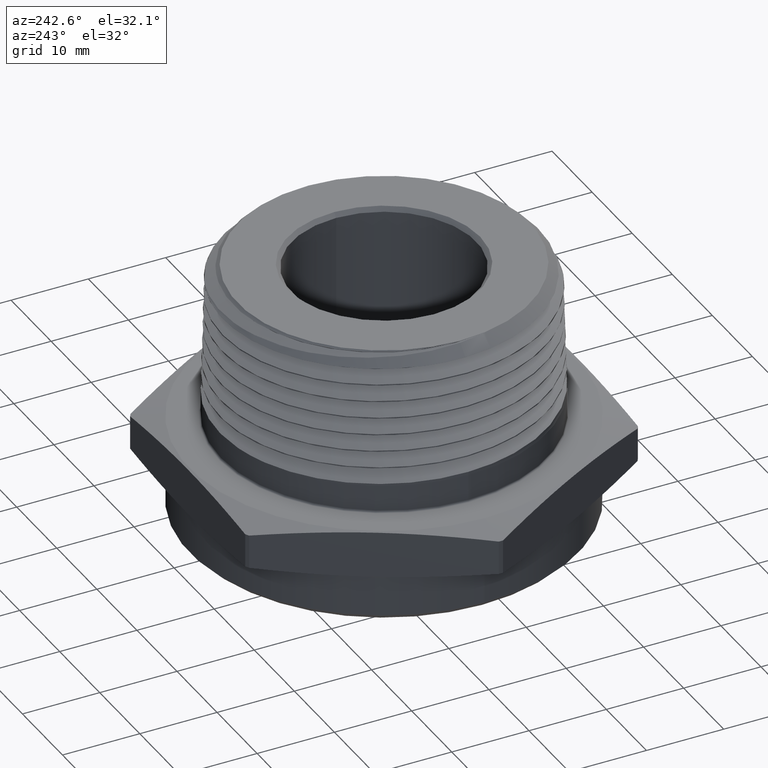
[diagram: clean part render]
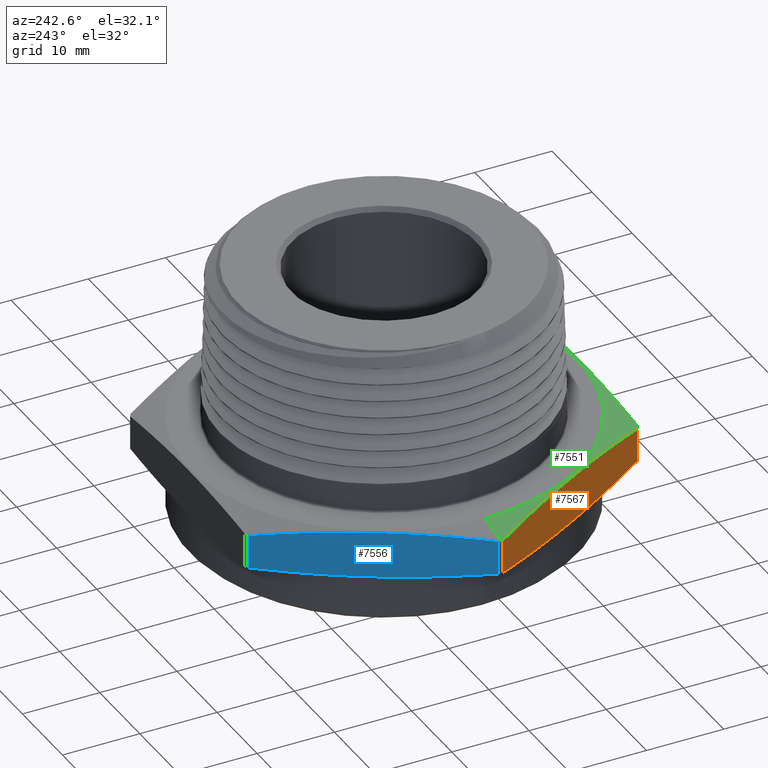
[diagram: same view with three faces highlighted in distinct colors, each labeled with its STEP entity id]
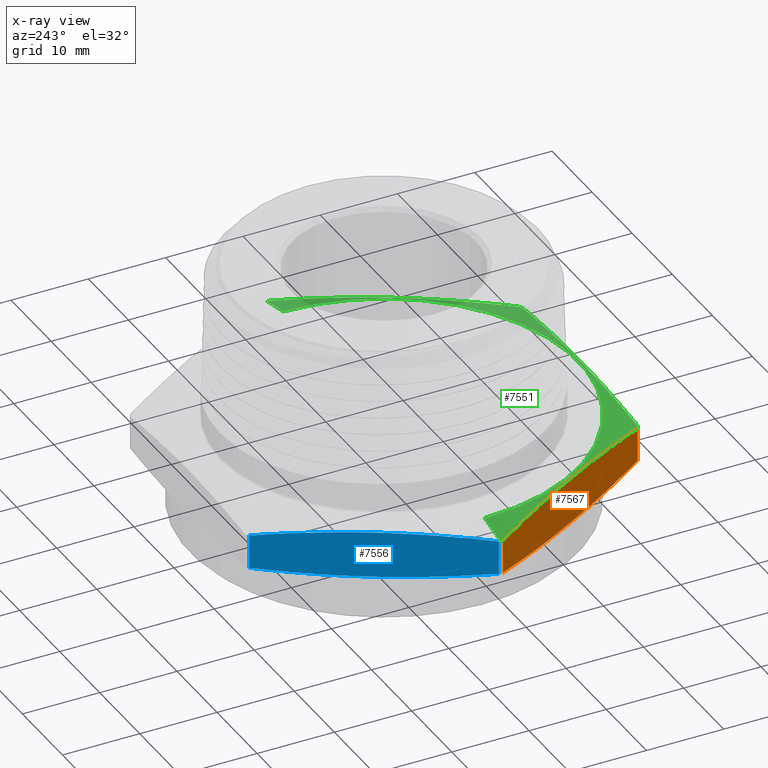
[diagram: x-ray of the same camera — body ghosted, the three highlighted faces saturated]
A machine part, auxiliary view with three faces highlighted in distinct colors.
The next image is the same camera in x-ray (body ghosted, the three faces saturated) — at least one of them is partly hidden behind the body in this view.
Their STEP definitions:

[orange] entity #7567 — the highlighted planar face has unit normal (0.866, 0.5, 0).
#272 = AXIS2_PLACEMENT_3D ( 'NONE', #964, #969, #970 ) ;
#458 = B_SPLINE_CURVE_WITH_KNOTS ( 'NONE', 3,
 ( #6196, #6184, #6185, #6198, #6199, #6200, #6201, #6202, #6203 ),
 .UNSPECIFIED., .F., .F.,
 ( 4, 2, 1, 2, 4 ),
 ( 1.912036473882365800E-006, 0.007180647299409206700, 0.01435938256234453100, 0.02153811782527985400, 0.02871685308821517900 ),
 .UNSPECIFIED. ) ;
#463 = B_SPLINE_CURVE_WITH_KNOTS ( 'NONE', 3,
 ( #6242, #6232, #6234, #6244, #6245, #6246, #6247, #6248, #6249 ),
 .UNSPECIFIED., .F., .F.,
 ( 4, 2, 1, 2, 4 ),
 ( 1.912036473919746600E-006, 0.007180647299409244000, 0.01435938256234456700, 0.02153811782527989200, 0.02871685308821521700 ),
 .UNSPECIFIED. ) ;
#829 = CARTESIAN_POINT ( 'NONE',  ( -1.148652776340946900, -0.01047503112242894800, 0.2062671592269262100 ) ) ;
#849 = CARTESIAN_POINT ( 'NONE',  ( -0.5833980312279288800, -0.9895249688775709100, 0.2062671592269261500 ) ) ;
#855 = CARTESIAN_POINT ( 'NONE',  ( -0.5833980312279288800, -0.9895249688775709100, 0.03373284077307375100 ) ) ;
#870 = CARTESIAN_POINT ( 'NONE',  ( -1.148652776340946900, -0.01047503112242894800, 0.03373284077307382000 ) ) ;
#963 = PLANE ( 'NONE',  #272 ) ;
#964 = CARTESIAN_POINT ( 'NONE',  ( -1.154700538379251200, -1.707404996040164500E-017, 0.2399999999999999900 ) ) ;
#969 = DIRECTION ( 'NONE',  ( 0.8660254037844386000, 0.5000000000000003300, -0.0000000000000000000 ) ) ;
#970 = DIRECTION ( 'NONE',  ( -0.5000000000000002200, 0.8660254037844384900, 0.0000000000000000000 ) ) ;
#1125 = FACE_OUTER_BOUND ( 'NONE', #5123, .T. ) ;
#4700 = EDGE_CURVE ( 'NONE', #7313, #7307, #7487, .T. ) ;
#4714 = EDGE_CURVE ( 'NONE', #7307, #5200, #458, .T. ) ;
#4719 = EDGE_CURVE ( 'NONE', #7329, #7313, #463, .T. ) ;
#4904 = EDGE_CURVE ( 'NONE', #5200, #7329, #7555, .T. ) ;
#4977 = ORIENTED_EDGE ( 'NONE', *, *, #4719, .T. ) ;
#4978 = ORIENTED_EDGE ( 'NONE', *, *, #4700, .T. ) ;
#4979 = ORIENTED_EDGE ( 'NONE', *, *, #4714, .T. ) ;
#4980 = ORIENTED_EDGE ( 'NONE', *, *, #4904, .T. ) ;
#5123 = EDGE_LOOP ( 'NONE', ( #4977, #4978, #4979, #4980 ) ) ;
#5200 = VERTEX_POINT ( 'NONE', #829 ) ;
#6158 = DIRECTION ( 'NONE',  ( 1.254986547952384500E-016, 0.0000000000000000000, 1.000000000000000000 ) ) ;
#6161 = CARTESIAN_POINT ( 'NONE',  ( -0.5833980312279288800, -0.9895249688775709100, -3.546935506415456800E-017 ) ) ;
#6184 = CARTESIAN_POINT ( 'NONE',  ( -0.6305025933206805900, -0.9079374740646424200, 0.2161209849015481000 ) ) ;
#6185 = CARTESIAN_POINT ( 'NONE',  ( -0.6776071554134321900, -0.8263499792517141600, 0.2241019815352207600 ) ) ;
#6196 = CARTESIAN_POINT ( 'NONE',  ( -0.5833980312279288800, -0.9895249688775709100, 0.2062671592269261500 ) ) ;
#6198 = CARTESIAN_POINT ( 'NONE',  ( -0.7718162795989349500, -0.6631749896258569700, 0.2349943997089065700 ) ) ;
#6199 = CARTESIAN_POINT ( 'NONE',  ( -0.8660254037844380400, -0.5000000000000001100, 0.2407544690576932400 ) ) ;
#6200 = CARTESIAN_POINT ( 'NONE',  ( -0.9602345279699412400, -0.3368250103741432000, 0.2349943997089065900 ) ) ;
#6201 = CARTESIAN_POINT ( 'NONE',  ( -1.054443652155443900, -0.1736500207482860000, 0.2241019815352207300 ) ) ;
#6202 = CARTESIAN_POINT ( 'NONE',  ( -1.101548214248195600, -0.09206252593535753400, 0.2161209849015481900 ) ) ;
#6203 = CARTESIAN_POINT ( 'NONE',  ( -1.148652776340946900, -0.01047503112242894800, 0.2062671592269262100 ) ) ;
#6232 = CARTESIAN_POINT ( 'NONE',  ( -1.101548214248195200, -0.09206252593535760300, 0.02387901509845179500 ) ) ;
#6234 = CARTESIAN_POINT ( 'NONE',  ( -1.054443652155444100, -0.1736500207482861200, 0.01589801846477921200 ) ) ;
#6242 = CARTESIAN_POINT ( 'NONE',  ( -1.148652776340946900, -0.01047503112242894800, 0.03373284077307382000 ) ) ;
#6244 = CARTESIAN_POINT ( 'NONE',  ( -0.9602345279699412400, -0.3368250103741430900, 0.005005600291093261300 ) ) ;
#6245 = CARTESIAN_POINT ( 'NONE',  ( -0.8660254037844379300, -0.5000000000000002200, -0.0007544690576934430300 ) ) ;
#6246 = CARTESIAN_POINT ( 'NONE',  ( -0.7718162795989349500, -0.6631749896258569700, 0.005005600291093254300 ) ) ;
#6247 = CARTESIAN_POINT ( 'NONE',  ( -0.6776071554134319700, -0.8263499792517141600, 0.01589801846477918400 ) ) ;
#6248 = CARTESIAN_POINT ( 'NONE',  ( -0.6305025933206805900, -0.9079374740646428700, 0.02387901509845176400 ) ) ;
#6249 = CARTESIAN_POINT ( 'NONE',  ( -0.5833980312279288800, -0.9895249688775709100, 0.03373284077307375100 ) ) ;
#7244 = DIRECTION ( 'NONE',  ( -1.254986547952384500E-016, -0.0000000000000000000, -1.000000000000000000 ) ) ;
#7248 = CARTESIAN_POINT ( 'NONE',  ( -1.148652776340946900, -0.01047503112242894800, 3.546935506415456800E-017 ) ) ;
#7307 = VERTEX_POINT ( 'NONE', #849 ) ;
#7313 = VERTEX_POINT ( 'NONE', #855 ) ;
#7329 = VERTEX_POINT ( 'NONE', #870 ) ;
#7487 = LINE ( 'NONE', #6161, #7491 ) ;
#7491 = VECTOR ( 'NONE', #6158, 39.37007874015748100 ) ;
#7555 = LINE ( 'NONE', #7248, #7559 ) ;
#7559 = VECTOR ( 'NONE', #7244, 39.37007874015748100 ) ;
#7567 = ADVANCED_FACE ( 'NONE', ( #1125 ), #963, .F. ) ;

[blue] entity #7556 — the highlighted planar face has unit normal (0.866, -0.5, 0).
#173 = EDGE_CURVE ( 'NONE', #7298, #7335, #7696, .T. ) ;
#266 = AXIS2_PLACEMENT_3D ( 'NONE', #945, #949, #950 ) ;
#762 = CARTESIAN_POINT ( 'NONE',  ( -0.6305025933206817000, 0.9079374740646415400, 0.02387901509845176400 ) ) ;
#763 = CARTESIAN_POINT ( 'NONE',  ( -0.6776071554134331900, 0.8263499792517133800, 0.01589801846477921500 ) ) ;
#767 = CARTESIAN_POINT ( 'NONE',  ( -0.5833980312279302100, 0.9895249688775702400, 0.03373284077307382000 ) ) ;
#768 = CARTESIAN_POINT ( 'NONE',  ( -0.7718162795989355100, 0.6631749896258566400, 0.005005600291093317700 ) ) ;
#769 = CARTESIAN_POINT ( 'NONE',  ( -0.8660254037844387100, 0.4999999999999998300, -0.0007544690576934019400 ) ) ;
#770 = CARTESIAN_POINT ( 'NONE',  ( -0.9602345279699411300, 0.3368250103741433600, 0.005005600291093335900 ) ) ;
#771 = CARTESIAN_POINT ( 'NONE',  ( -1.054443652155444100, 0.1736500207482863900, 0.01589801846477924300 ) ) ;
#772 = CARTESIAN_POINT ( 'NONE',  ( -1.101548214248195600, 0.09206252593535790800, 0.02387901509845180200 ) ) ;
#773 = CARTESIAN_POINT ( 'NONE',  ( -1.148652776340946900, 0.01047503112242942500, 0.03373284077307382000 ) ) ;
#774 = CARTESIAN_POINT ( 'NONE',  ( -0.8660254037844384900, 0.5000000000000000000, 0.2407544690576932100 ) ) ;
#775 = CARTESIAN_POINT ( 'NONE',  ( -0.7718162795989354000, 0.6631749896258566400, 0.2349943997089064500 ) ) ;
#776 = CARTESIAN_POINT ( 'NONE',  ( -0.6776071554134328600, 0.8263499792517136100, 0.2241019815352206000 ) ) ;
#777 = CARTESIAN_POINT ( 'NONE',  ( -0.6305025933206814800, 0.9079374740646418700, 0.2161209849015480700 ) ) ;
#778 = CARTESIAN_POINT ( 'NONE',  ( -0.5833980312279302100, 0.9895249688775701300, 0.2062671592269261500 ) ) ;
#819 = CARTESIAN_POINT ( 'NONE',  ( -0.5833980312279302100, 0.9895249688775702400, 0.03373284077307382000 ) ) ;
#823 = CARTESIAN_POINT ( 'NONE',  ( -1.148652776340946900, 0.01047503112242942500, 0.03373284077307382000 ) ) ;
#842 = CARTESIAN_POINT ( 'NONE',  ( -1.148652776340946900, 0.01047503112242942500, 0.2062671592269262100 ) ) ;
#876 = CARTESIAN_POINT ( 'NONE',  ( -0.5833980312279302100, 0.9895249688775701300, 0.2062671592269261500 ) ) ;
#945 = CARTESIAN_POINT ( 'NONE',  ( -0.5773502691896258400, 0.9999999999999998900, 0.2399999999999999900 ) ) ;
#947 = PLANE ( 'NONE',  #266 ) ;
#949 = DIRECTION ( 'NONE',  ( 0.8660254037844388200, -0.4999999999999998300, 0.0000000000000000000 ) ) ;
#950 = DIRECTION ( 'NONE',  ( 0.4999999999999998300, 0.8660254037844388200, 0.0000000000000000000 ) ) ;
#2207 = CARTESIAN_POINT ( 'NONE',  ( -1.101548214248195600, 0.09206252593535792200, 0.2161209849015482100 ) ) ;
#2214 = CARTESIAN_POINT ( 'NONE',  ( -1.054443652155444100, 0.1736500207482862800, 0.2241019815352206800 ) ) ;
#2218 = CARTESIAN_POINT ( 'NONE',  ( -1.148652776340946900, 0.01047503112242942500, 0.2062671592269262100 ) ) ;
#4616 = EDGE_CURVE ( 'NONE', #5003, #5007, #7698, .T. ) ;
#4701 = EDGE_CURVE ( 'NONE', #5007, #7298, #7489, .T. ) ;
#4712 = EDGE_CURVE ( 'NONE', #7335, #5003, #7518, .T. ) ;
#4957 = ORIENTED_EDGE ( 'NONE', *, *, #4616, .T. ) ;
#4958 = ORIENTED_EDGE ( 'NONE', *, *, #4701, .T. ) ;
#4959 = ORIENTED_EDGE ( 'NONE', *, *, #173, .T. ) ;
#4960 = ORIENTED_EDGE ( 'NONE', *, *, #4712, .T. ) ;
#5003 = VERTEX_POINT ( 'NONE', #819 ) ;
#5007 = VERTEX_POINT ( 'NONE', #823 ) ;
#5095 = EDGE_LOOP ( 'NONE', ( #4957, #4958, #4959, #4960 ) ) ;
#6160 = CARTESIAN_POINT ( 'NONE',  ( -1.148652776340946900, 0.01047503112242942500, 3.546935506415448800E-017 ) ) ;
#6166 = DIRECTION ( 'NONE',  ( 1.254986547952384500E-016, 0.0000000000000000000, 1.000000000000000000 ) ) ;
#6191 = CARTESIAN_POINT ( 'NONE',  ( -0.5833980312279302100, 0.9895249688775702400, -3.546935506415448800E-017 ) ) ;
#6192 = DIRECTION ( 'NONE',  ( -1.254986547952384500E-016, -0.0000000000000000000, -1.000000000000000000 ) ) ;
#7298 = VERTEX_POINT ( 'NONE', #842 ) ;
#7335 = VERTEX_POINT ( 'NONE', #876 ) ;
#7489 = LINE ( 'NONE', #6160, #7494 ) ;
#7494 = VECTOR ( 'NONE', #6166, 39.37007874015748100 ) ;
#7518 = LINE ( 'NONE', #6191, #7521 ) ;
#7521 = VECTOR ( 'NONE', #6192, 39.37007874015748100 ) ;
#7556 = ADVANCED_FACE ( 'NONE', ( #7627 ), #947, .F. ) ;
#7627 = FACE_OUTER_BOUND ( 'NONE', #5095, .T. ) ;
#7628 = CARTESIAN_POINT ( 'NONE',  ( -0.9602345279699413500, 0.3368250103741431400, 0.2349943997089065100 ) ) ;
#7696 = B_SPLINE_CURVE_WITH_KNOTS ( 'NONE', 3,
 ( #2218, #2207, #2214, #7628, #774, #775, #776, #777, #778 ),
 .UNSPECIFIED., .F., .F.,
 ( 4, 2, 1, 2, 4 ),
 ( 1.912036473932417800E-006, 0.007180647299409250100, 0.01435938256234456900, 0.02153811782527987800, 0.02871685308821518900 ),
 .UNSPECIFIED. ) ;
#7698 = B_SPLINE_CURVE_WITH_KNOTS ( 'NONE', 3,
 ( #767, #762, #763, #768, #769, #770, #771, #772, #773 ),
 .UNSPECIFIED., .F., .F.,
 ( 4, 2, 1, 2, 4 ),
 ( 1.912036473914209100E-006, 0.007180647299409227500, 0.01435938256234454100, 0.02153811782527985400, 0.02871685308821516800 ),
 .UNSPECIFIED. ) ;

[green] entity #7551 — the highlighted conical surface has half-angle 78 deg.
#175 = EDGE_CURVE ( 'NONE', #4985, #5210, #7410, .T. ) ;
#228 = AXIS2_PLACEMENT_3D ( 'NONE', #6148, #6149, #6150 ) ;
#231 = AXIS2_PLACEMENT_3D ( 'NONE', #6162, #6163, #6164 ) ;
#233 = AXIS2_PLACEMENT_3D ( 'NONE', #6174, #6175, #6176 ) ;
#234 = AXIS2_PLACEMENT_3D ( 'NONE', #6181, #6182, #6183 ) ;
#241 = AXIS2_PLACEMENT_3D ( 'NONE', #7251, #7252, #7253 ) ;
#260 = AXIS2_PLACEMENT_3D ( 'NONE', #940, #941, #939 ) ;
#458 = B_SPLINE_CURVE_WITH_KNOTS ( 'NONE', 3,
 ( #6196, #6184, #6185, #6198, #6199, #6200, #6201, #6202, #6203 ),
 .UNSPECIFIED., .F., .F.,
 ( 4, 2, 1, 2, 4 ),
 ( 1.912036473882365800E-006, 0.007180647299409206700, 0.01435938256234453100, 0.02153811782527985400, 0.02871685308821517900 ),
 .UNSPECIFIED. ) ;
#459 = B_SPLINE_CURVE_WITH_KNOTS ( 'NONE', 3,
 ( #6205, #6195, #6197, #6207, #6208, #6209, #6210, #6211, #6212, #6213 ),
 .UNSPECIFIED., .F., .F.,
 ( 4, 2, 2, 2, 4 ),
 ( 0.05573964240388473700, 0.06293994667375101000, 0.07014025094361726900, 0.07734055521348354200, 0.08454085948334980100 ),
 .UNSPECIFIED. ) ;
#460 = B_SPLINE_CURVE_WITH_KNOTS ( 'NONE', 3,
 ( #6215, #6204, #6206, #6217, #6218, #6219, #6220, #6221, #6222 ),
 .UNSPECIFIED., .F., .F.,
 ( 4, 2, 1, 2, 4 ),
 ( 1.912036473852588300E-006, 0.007180647299409175500, 0.01435938256234449600, 0.02153811782527981200, 0.02871685308821513000 ),
 .UNSPECIFIED. ) ;
#507 = CARTESIAN_POINT ( 'NONE',  ( 0.9900000000000002100, 1.212400331155879900E-016, 0.2399999999999997400 ) ) ;
#511 = DIRECTION ( 'NONE',  ( 0.9781476007338069100, 1.197885328332319900E-016, -0.2079116908177526000 ) ) ;
#779 = DIRECTION ( 'NONE',  ( -0.9781476007338071300, 0.0000000000000000000, -0.2079116908177524000 ) ) ;
#780 = CARTESIAN_POINT ( 'NONE',  ( -0.9900000000000002100, 0.0000000000000000000, 0.2399999999999999900 ) ) ;
#826 = CARTESIAN_POINT ( 'NONE',  ( -1.148700538379251000, 0.0000000000000000000, 0.2062671592269262100 ) ) ;
#829 = CARTESIAN_POINT ( 'NONE',  ( -1.148652776340946900, -0.01047503112242894800, 0.2062671592269262100 ) ) ;
#831 = CARTESIAN_POINT ( 'NONE',  ( 0.9900000000000002100, 1.212400331155879900E-016, 0.2399999999999997400 ) ) ;
#836 = CARTESIAN_POINT ( 'NONE',  ( 1.148700538379251000, 1.406752437504991000E-016, 0.2062671592269259300 ) ) ;
#847 = CARTESIAN_POINT ( 'NONE',  ( 0.5652547451130174300, -0.9999999999999994400, 0.2062671592269260100 ) ) ;
#849 = CARTESIAN_POINT ( 'NONE',  ( -0.5833980312279288800, -0.9895249688775709100, 0.2062671592269261500 ) ) ;
#850 = CARTESIAN_POINT ( 'NONE',  ( 0.5833980312279298800, -0.9895249688775702400, 0.2062671592269260100 ) ) ;
#852 = CARTESIAN_POINT ( 'NONE',  ( -0.5652547451130169900, -0.9999999999999996700, 0.2062671592269261500 ) ) ;
#864 = CARTESIAN_POINT ( 'NONE',  ( 1.148652776340946900, -0.01047503112242881100, 0.2062671592269259300 ) ) ;
#939 = DIRECTION ( 'NONE',  ( -1.000000000000000000, 0.0000000000000000000, 1.379721208921344700E-016 ) ) ;
#940 = CARTESIAN_POINT ( 'NONE',  ( 3.011967715085720700E-017, 0.0000000000000000000, 0.2399999999999998500 ) ) ;
#941 = DIRECTION ( 'NONE',  ( -1.254986547952384500E-016, -0.0000000000000000000, -1.000000000000000000 ) ) ;
#1120 = CONICAL_SURFACE ( 'NONE', #260, 0.9900000000000002100, 1.361356816555584000 ) ;
#4624 = EDGE_CURVE ( 'NONE', #5202, #5208, #7427, .T. ) ;
#4695 = EDGE_CURVE ( 'NONE', #5202, #4985, #7481, .T. ) ;
#4699 = EDGE_CURVE ( 'NONE', #7310, #7307, #7485, .T. ) ;
#4704 = EDGE_CURVE ( 'NONE', #7308, #7304, #7490, .T. ) ;
#4707 = EDGE_CURVE ( 'NONE', #5208, #7322, #7506, .T. ) ;
#4714 = EDGE_CURVE ( 'NONE', #7307, #5200, #458, .T. ) ;
#4715 = EDGE_CURVE ( 'NONE', #7304, #7310, #459, .T. ) ;
#4716 = EDGE_CURVE ( 'NONE', #7322, #7308, #460, .T. ) ;
#4903 = EDGE_CURVE ( 'NONE', #5200, #5210, #7546, .T. ) ;
#4937 = ORIENTED_EDGE ( 'NONE', *, *, #4624, .F. ) ;
#4938 = ORIENTED_EDGE ( 'NONE', *, *, #4695, .T. ) ;
#4939 = ORIENTED_EDGE ( 'NONE', *, *, #175, .T. ) ;
#4940 = ORIENTED_EDGE ( 'NONE', *, *, #4903, .F. ) ;
#4941 = ORIENTED_EDGE ( 'NONE', *, *, #4714, .F. ) ;
#4942 = ORIENTED_EDGE ( 'NONE', *, *, #4699, .F. ) ;
#4943 = ORIENTED_EDGE ( 'NONE', *, *, #4715, .F. ) ;
#4944 = ORIENTED_EDGE ( 'NONE', *, *, #4704, .F. ) ;
#4945 = ORIENTED_EDGE ( 'NONE', *, *, #4716, .F. ) ;
#4946 = ORIENTED_EDGE ( 'NONE', *, *, #4707, .F. ) ;
#4985 = VERTEX_POINT ( 'NONE', #7282 ) ;
#5094 = EDGE_LOOP ( 'NONE', ( #4937, #4938, #4939, #4940, #4941, #4942, #4943, #4944, #4945, #4946 ) ) ;
#5200 = VERTEX_POINT ( 'NONE', #829 ) ;
#5202 = VERTEX_POINT ( 'NONE', #831 ) ;
#5208 = VERTEX_POINT ( 'NONE', #836 ) ;
#5210 = VERTEX_POINT ( 'NONE', #826 ) ;
#6148 = CARTESIAN_POINT ( 'NONE',  ( 3.011967715085720700E-017, 0.0000000000000000000, 0.2399999999999998500 ) ) ;
#6149 = DIRECTION ( 'NONE',  ( -1.254986547952384500E-016, -0.0000000000000000000, -1.000000000000000000 ) ) ;
#6150 = DIRECTION ( 'NONE',  ( -1.000000000000000000, 0.0000000000000000000, 1.379721208921344700E-016 ) ) ;
#6162 = CARTESIAN_POINT ( 'NONE',  ( 2.588625101141448000E-017, 0.0000000000000000000, 0.2062671592269260700 ) ) ;
#6163 = DIRECTION ( 'NONE',  ( -1.254986547952384500E-016, -0.0000000000000000000, -1.000000000000000000 ) ) ;
#6164 = DIRECTION ( 'NONE',  ( -1.000000000000000000, 0.0000000000000000000, 1.189103644679552500E-016 ) ) ;
#6174 = CARTESIAN_POINT ( 'NONE',  ( 2.588625101141448000E-017, 0.0000000000000000000, 0.2062671592269260700 ) ) ;
#6175 = DIRECTION ( 'NONE',  ( -1.254986547952384500E-016, -0.0000000000000000000, -1.000000000000000000 ) ) ;
#6176 = DIRECTION ( 'NONE',  ( -1.000000000000000000, 0.0000000000000000000, 1.189103644679552500E-016 ) ) ;
#6181 = CARTESIAN_POINT ( 'NONE',  ( 2.588625101141448000E-017, 0.0000000000000000000, 0.2062671592269260700 ) ) ;
#6182 = DIRECTION ( 'NONE',  ( -1.254986547952384500E-016, -0.0000000000000000000, -1.000000000000000000 ) ) ;
#6183 = DIRECTION ( 'NONE',  ( -1.000000000000000000, 0.0000000000000000000, 1.189103644679552500E-016 ) ) ;
#6184 = CARTESIAN_POINT ( 'NONE',  ( -0.6305025933206805900, -0.9079374740646424200, 0.2161209849015481000 ) ) ;
#6185 = CARTESIAN_POINT ( 'NONE',  ( -0.6776071554134321900, -0.8263499792517141600, 0.2241019815352207600 ) ) ;
#6195 = CARTESIAN_POINT ( 'NONE',  ( 0.4712475040554237600, -0.9999999999999998900, 0.2160998688879318700 ) ) ;
#6196 = CARTESIAN_POINT ( 'NONE',  ( -0.5833980312279288800, -0.9895249688775709100, 0.2062671592269261500 ) ) ;
#6197 = CARTESIAN_POINT ( 'NONE',  ( 0.3771985397245069000, -1.000000000000000200, 0.2240727341064834800 ) ) ;
#6198 = CARTESIAN_POINT ( 'NONE',  ( -0.7718162795989349500, -0.6631749896258569700, 0.2349943997089065700 ) ) ;
#6199 = CARTESIAN_POINT ( 'NONE',  ( -0.8660254037844380400, -0.5000000000000001100, 0.2407544690576932400 ) ) ;
#6200 = CARTESIAN_POINT ( 'NONE',  ( -0.9602345279699412400, -0.3368250103741432000, 0.2349943997089065900 ) ) ;
#6201 = CARTESIAN_POINT ( 'NONE',  ( -1.054443652155443900, -0.1736500207482860000, 0.2241019815352207300 ) ) ;
#6202 = CARTESIAN_POINT ( 'NONE',  ( -1.101548214248195600, -0.09206252593535753400, 0.2161209849015481900 ) ) ;
#6203 = CARTESIAN_POINT ( 'NONE',  ( -1.148652776340946900, -0.01047503112242894800, 0.2062671592269262100 ) ) ;
#6204 = CARTESIAN_POINT ( 'NONE',  ( 1.101548214248195800, -0.09206252593535742300, 0.2161209849015479100 ) ) ;
#6205 = CARTESIAN_POINT ( 'NONE',  ( 0.5652547451130174300, -0.9999999999999994400, 0.2062671592269260100 ) ) ;
#6206 = CARTESIAN_POINT ( 'NONE',  ( 1.054443652155444300, -0.1736500207482858400, 0.2241019815352204600 ) ) ;
#6207 = CARTESIAN_POINT ( 'NONE',  ( 0.1889873500966714200, -1.000000000000000000, 0.2349697768115718000 ) ) ;
#6208 = CARTESIAN_POINT ( 'NONE',  ( 0.09482441786527295900, -0.9999999999999996700, 0.2378624421932743200 ) ) ;
#6209 = CARTESIAN_POINT ( 'NONE',  ( -0.09363069686368993800, -0.9999999999999998900, 0.2378863508516600400 ) ) ;
#6210 = CARTESIAN_POINT ( 'NONE',  ( -0.1879228996696020200, -1.000000000000000000, 0.2350166888694126800 ) ) ;
#6211 = CARTESIAN_POINT ( 'NONE',  ( -0.3766229897602760300, -0.9999999999999998900, 0.2241206473721582300 ) ) ;
#6212 = CARTESIAN_POINT ( 'NONE',  ( -0.4711164605598329700, -1.000000000000000000, 0.2161135754134146100 ) ) ;
#6213 = CARTESIAN_POINT ( 'NONE',  ( -0.5652547451130169900, -0.9999999999999996700, 0.2062671592269261500 ) ) ;
#6215 = CARTESIAN_POINT ( 'NONE',  ( 1.148652776340946900, -0.01047503112242881100, 0.2062671592269259300 ) ) ;
#6217 = CARTESIAN_POINT ( 'NONE',  ( 0.9602345279699415800, -0.3368250103741428100, 0.2349943997089064000 ) ) ;
#6218 = CARTESIAN_POINT ( 'NONE',  ( 0.8660254037844387100, -0.4999999999999998300, 0.2407544690576929600 ) ) ;
#6219 = CARTESIAN_POINT ( 'NONE',  ( 0.7718162795989355100, -0.6631749896258567500, 0.2349943997089064300 ) ) ;
#6220 = CARTESIAN_POINT ( 'NONE',  ( 0.6776071554134331900, -0.8263499792517138300, 0.2241019815352204800 ) ) ;
#6221 = CARTESIAN_POINT ( 'NONE',  ( 0.6305025933206812600, -0.9079374740646419800, 0.2161209849015479100 ) ) ;
#6222 = CARTESIAN_POINT ( 'NONE',  ( 0.5833980312279298800, -0.9895249688775702400, 0.2062671592269260100 ) ) ;
#7251 = CARTESIAN_POINT ( 'NONE',  ( 2.588625101141448000E-017, 0.0000000000000000000, 0.2062671592269260700 ) ) ;
#7252 = DIRECTION ( 'NONE',  ( -1.254986547952384500E-016, -0.0000000000000000000, -1.000000000000000000 ) ) ;
#7253 = DIRECTION ( 'NONE',  ( -1.000000000000000000, 0.0000000000000000000, 1.189103644679552500E-016 ) ) ;
#7282 = CARTESIAN_POINT ( 'NONE',  ( -0.9900000000000002100, 0.0000000000000000000, 0.2399999999999999900 ) ) ;
#7304 = VERTEX_POINT ( 'NONE', #847 ) ;
#7307 = VERTEX_POINT ( 'NONE', #849 ) ;
#7308 = VERTEX_POINT ( 'NONE', #850 ) ;
#7310 = VERTEX_POINT ( 'NONE', #852 ) ;
#7322 = VERTEX_POINT ( 'NONE', #864 ) ;
#7410 = LINE ( 'NONE', #780, #7413 ) ;
#7413 = VECTOR ( 'NONE', #779, 39.37007874015748100 ) ;
#7427 = LINE ( 'NONE', #507, #7435 ) ;
#7435 = VECTOR ( 'NONE', #511, 39.37007874015748900 ) ;
#7481 = CIRCLE ( 'NONE', #228, 0.9900000000000002100 ) ;
#7485 = CIRCLE ( 'NONE', #231, 1.148700538379251000 ) ;
#7490 = CIRCLE ( 'NONE', #233, 1.148700538379251000 ) ;
#7506 = CIRCLE ( 'NONE', #234, 1.148700538379251000 ) ;
#7546 = CIRCLE ( 'NONE', #241, 1.148700538379251000 ) ;
#7551 = ADVANCED_FACE ( 'NONE', ( #7623 ), #1120, .T. ) ;
#7623 = FACE_OUTER_BOUND ( 'NONE', #5094, .T. ) ;